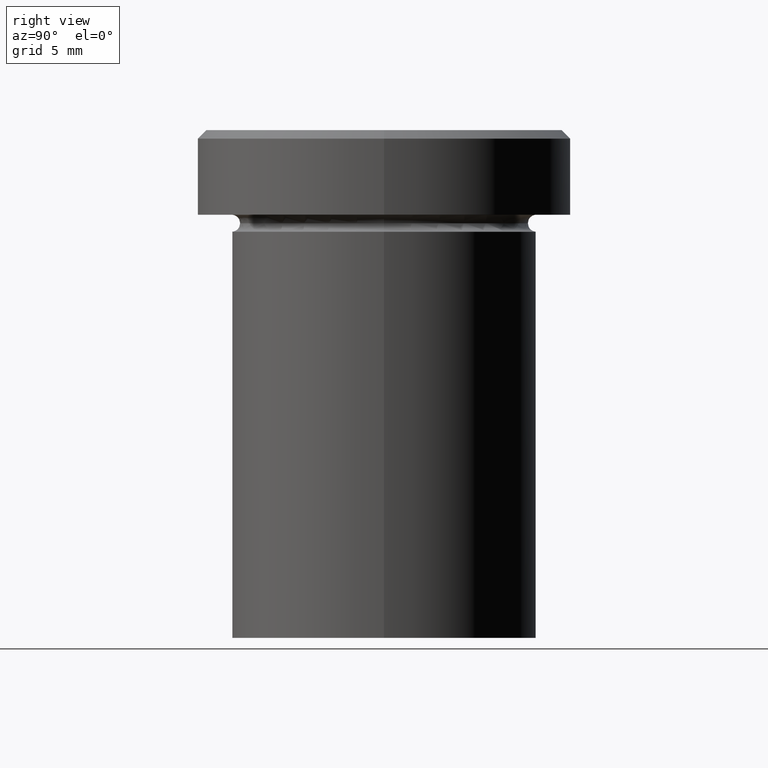
[diagram: clean part render]
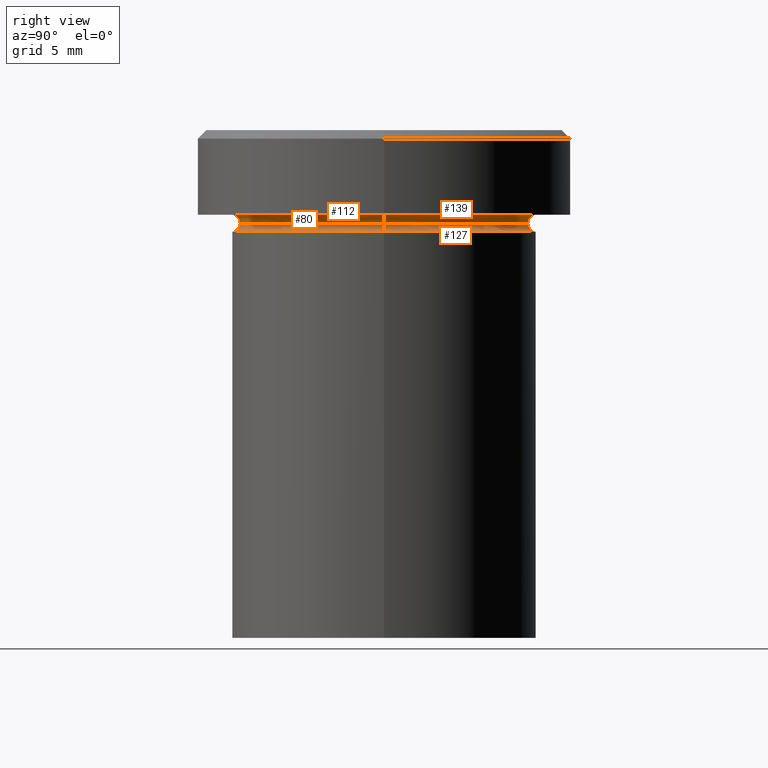
[diagram: same view with one multi-face feature highlighted, each face labeled with its STEP entity id]
A machine part, right view. The highlighted faces form ONE feature: a constant-radius fillet chain: 4 tangent blend faces with common blend radius 0.5 mm. The faces share edges in the B-rep.
Their STEP definitions:
[1] entity #127 (Torus):
#4 = FACE_OUTER_BOUND ( 'NONE', #209, .T. ) ;
#6 = DIRECTION ( 'NONE',  ( 1.000000000000000000, 0.000000000000000000, 0.000000000000000000 ) ) ;
#25 = CARTESIAN_POINT ( 'NONE',  ( 9.000000000000000000, 0.000000000000000000, -6.000000000000000000 ) ) ;
#32 = CARTESIAN_POINT ( 'NONE',  ( 0.000000000000000000, 0.000000000000000000, -6.000000000000000000 ) ) ;
#35 = AXIS2_PLACEMENT_3D ( 'NONE', #32, #348, #6 ) ;
#41 = CARTESIAN_POINT ( 'NONE',  ( 0.000000000000000000, 0.000000000000000000, -5.500000000000000000 ) ) ;
#48 = DIRECTION ( 'NONE',  ( -0.000000000000000000, -0.000000000000000000, 1.000000000000000000 ) ) ;
#53 = DIRECTION ( 'NONE',  ( 0.000000000000000000, 0.000000000000000000, -1.000000000000000000 ) ) ;
#65 = DIRECTION ( 'NONE',  ( -1.000000000000000000, 1.224646799147353454E-16, 0.000000000000000000 ) ) ;
#88 = ORIENTED_EDGE ( 'NONE', *, *, #322, .T. ) ;
#92 = ORIENTED_EDGE ( 'NONE', *, *, #276, .F. ) ;
#107 = EDGE_CURVE ( 'NONE', #250, #246, #406, .T. ) ;
#124 = CIRCLE ( 'NONE', #360, 0.5000000000000004441 ) ;
#127 = ADVANCED_FACE ( 'NONE', ( #4 ), #363, .F. ) ;
#152 = DIRECTION ( 'NONE',  ( 0.000000000000000000, -1.000000000000000000, 0.000000000000000000 ) ) ;
#156 = ORIENTED_EDGE ( 'NONE', *, *, #290, .F. ) ;
#173 = VERTEX_POINT ( 'NONE', #300 ) ;
#186 = CARTESIAN_POINT ( 'NONE',  ( -9.000000000000000000, 1.102182119232617714E-15, -6.000000000000000000 ) ) ;
#196 = DIRECTION ( 'NONE',  ( -0.000000000000000000, -0.000000000000000000, 1.000000000000000000 ) ) ;
#209 = EDGE_LOOP ( 'NONE', ( #156, #92, #404, #88 ) ) ;
#222 = CARTESIAN_POINT ( 'NONE',  ( 8.499999999999998224, 0.000000000000000000, -5.500000000000000000 ) ) ;
#246 = VERTEX_POINT ( 'NONE', #25 ) ;
#250 = VERTEX_POINT ( 'NONE', #222 ) ;
#255 = CARTESIAN_POINT ( 'NONE',  ( -9.000000000000000000, 1.102182119232617714E-15, -5.500000000000000000 ) ) ;
#256 = DIRECTION ( 'NONE',  ( 1.000000000000000000, 0.000000000000000000, 0.000000000000000000 ) ) ;
#276 = EDGE_CURVE ( 'NONE', #250, #173, #299, .T. ) ;
#289 = DIRECTION ( 'NONE',  ( 1.224646799147353207E-16, 1.000000000000000000, 0.000000000000000000 ) ) ;
#290 = EDGE_CURVE ( 'NONE', #173, #352, #124, .T. ) ;
#299 = CIRCLE ( 'NONE', #324, 8.499999999999998224 ) ;
#300 = CARTESIAN_POINT ( 'NONE',  ( -8.499999999999998224, 1.071565949253933927E-15, -5.500000000000000000 ) ) ;
#303 = CARTESIAN_POINT ( 'NONE',  ( 0.000000000000000000, 0.000000000000000000, -5.500000000000000000 ) ) ;
#306 = AXIS2_PLACEMENT_3D ( 'NONE', #41, #196, #326 ) ;
#322 = EDGE_CURVE ( 'NONE', #246, #352, #392, .T. ) ;
#324 = AXIS2_PLACEMENT_3D ( 'NONE', #303, #48, #256 ) ;
#326 = DIRECTION ( 'NONE',  ( 1.000000000000000000, 0.000000000000000000, 0.000000000000000000 ) ) ;
#333 = AXIS2_PLACEMENT_3D ( 'NONE', #342, #152, #53 ) ;
#342 = CARTESIAN_POINT ( 'NONE',  ( 9.000000000000000000, 0.000000000000000000, -5.500000000000000000 ) ) ;
#348 = DIRECTION ( 'NONE',  ( -0.000000000000000000, -0.000000000000000000, 1.000000000000000000 ) ) ;
#352 = VERTEX_POINT ( 'NONE', #186 ) ;
#360 = AXIS2_PLACEMENT_3D ( 'NONE', #255, #289, #65 ) ;
#363 = TOROIDAL_SURFACE ( 'NONE', #306, 9.000000000000000000, 0.5000000000000000000 ) ;
#392 = CIRCLE ( 'NONE', #35, 9.000000000000000000 ) ;
#404 = ORIENTED_EDGE ( 'NONE', *, *, #107, .T. ) ;
#406 = CIRCLE ( 'NONE', #333, 0.5000000000000004441 ) ;
[2] entity #139 (Torus):
#11 = DIRECTION ( 'NONE',  ( -1.000000000000000000, 0.000000000000000000, 0.000000000000000000 ) ) ;
#12 = DIRECTION ( 'NONE',  ( -1.000000000000000000, 0.000000000000000000, 0.000000000000000000 ) ) ;
#13 = EDGE_CURVE ( 'NONE', #173, #380, #142, .T. ) ;
#14 = DIRECTION ( 'NONE',  ( 0.000000000000000000, 0.000000000000000000, -1.000000000000000000 ) ) ;
#26 = AXIS2_PLACEMENT_3D ( 'NONE', #395, #104, #11 ) ;
#48 = DIRECTION ( 'NONE',  ( -0.000000000000000000, -0.000000000000000000, 1.000000000000000000 ) ) ;
#51 = TOROIDAL_SURFACE ( 'NONE', #204, 9.000000000000000000, 0.5000000000000000000 ) ;
#59 = AXIS2_PLACEMENT_3D ( 'NONE', #396, #168, #108 ) ;
#75 = CARTESIAN_POINT ( 'NONE',  ( 0.000000000000000000, 0.000000000000000000, -5.500000000000000000 ) ) ;
#104 = DIRECTION ( 'NONE',  ( -0.000000000000000000, -0.000000000000000000, 1.000000000000000000 ) ) ;
#108 = DIRECTION ( 'NONE',  ( -1.000000000000000000, -1.224646799147353454E-16, 0.000000000000000000 ) ) ;
#122 = DIRECTION ( 'NONE',  ( -0.000000000000000000, -1.000000000000000000, -0.000000000000000000 ) ) ;
#139 = ADVANCED_FACE ( 'NONE', ( #166 ), #51, .F. ) ;
#142 = CIRCLE ( 'NONE', #339, 0.5000000000000004441 ) ;
#166 = FACE_OUTER_BOUND ( 'NONE', #312, .T. ) ;
#167 = CIRCLE ( 'NONE', #26, 9.000000000000000000 ) ;
#168 = DIRECTION ( 'NONE',  ( -1.224646799147353207E-16, 1.000000000000000000, 0.000000000000000000 ) ) ;
#173 = VERTEX_POINT ( 'NONE', #300 ) ;
#183 = EDGE_CURVE ( 'NONE', #401, #380, #167, .T. ) ;
#193 = EDGE_CURVE ( 'NONE', #250, #401, #239, .T. ) ;
#204 = AXIS2_PLACEMENT_3D ( 'NONE', #75, #14, #12 ) ;
#222 = CARTESIAN_POINT ( 'NONE',  ( 8.499999999999998224, 0.000000000000000000, -5.500000000000000000 ) ) ;
#223 = DIRECTION ( 'NONE',  ( 0.000000000000000000, 0.000000000000000000, -1.000000000000000000 ) ) ;
#226 = ORIENTED_EDGE ( 'NONE', *, *, #276, .T. ) ;
#231 = ORIENTED_EDGE ( 'NONE', *, *, #183, .F. ) ;
#239 = CIRCLE ( 'NONE', #59, 0.5000000000000004441 ) ;
#250 = VERTEX_POINT ( 'NONE', #222 ) ;
#256 = DIRECTION ( 'NONE',  ( 1.000000000000000000, 0.000000000000000000, 0.000000000000000000 ) ) ;
#276 = EDGE_CURVE ( 'NONE', #250, #173, #299, .T. ) ;
#299 = CIRCLE ( 'NONE', #324, 8.499999999999998224 ) ;
#300 = CARTESIAN_POINT ( 'NONE',  ( -8.499999999999998224, 1.071565949253933927E-15, -5.500000000000000000 ) ) ;
#303 = CARTESIAN_POINT ( 'NONE',  ( 0.000000000000000000, 0.000000000000000000, -5.500000000000000000 ) ) ;
#312 = EDGE_LOOP ( 'NONE', ( #317, #226, #336, #231 ) ) ;
#317 = ORIENTED_EDGE ( 'NONE', *, *, #193, .F. ) ;
#324 = AXIS2_PLACEMENT_3D ( 'NONE', #303, #48, #256 ) ;
#325 = CARTESIAN_POINT ( 'NONE',  ( 9.000000000000000000, 1.102182119232617714E-15, -4.999999999999999112 ) ) ;
#336 = ORIENTED_EDGE ( 'NONE', *, *, #13, .T. ) ;
#339 = AXIS2_PLACEMENT_3D ( 'NONE', #375, #122, #223 ) ;
#358 = CARTESIAN_POINT ( 'NONE',  ( -9.000000000000000000, 0.000000000000000000, -4.999999999999999112 ) ) ;
#375 = CARTESIAN_POINT ( 'NONE',  ( -9.000000000000000000, 0.000000000000000000, -5.500000000000000000 ) ) ;
#380 = VERTEX_POINT ( 'NONE', #358 ) ;
#395 = CARTESIAN_POINT ( 'NONE',  ( 0.000000000000000000, 0.000000000000000000, -5.000000000000000000 ) ) ;
#396 = CARTESIAN_POINT ( 'NONE',  ( 9.000000000000000000, 1.102182119232617714E-15, -5.500000000000000000 ) ) ;
#401 = VERTEX_POINT ( 'NONE', #325 ) ;
[3] entity #80 (Torus):
#13 = EDGE_CURVE ( 'NONE', #173, #380, #142, .T. ) ;
#16 = CARTESIAN_POINT ( 'NONE',  ( 0.000000000000000000, 0.000000000000000000, -5.500000000000000000 ) ) ;
#42 = CIRCLE ( 'NONE', #270, 9.000000000000000000 ) ;
#46 = ORIENTED_EDGE ( 'NONE', *, *, #93, .F. ) ;
#59 = AXIS2_PLACEMENT_3D ( 'NONE', #396, #168, #108 ) ;
#73 = CARTESIAN_POINT ( 'NONE',  ( 0.000000000000000000, 0.000000000000000000, -5.000000000000000000 ) ) ;
#80 = ADVANCED_FACE ( 'NONE', ( #96 ), #90, .F. ) ;
#85 = ORIENTED_EDGE ( 'NONE', *, *, #178, .T. ) ;
#90 = TOROIDAL_SURFACE ( 'NONE', #247, 9.000000000000000000, 0.5000000000000000000 ) ;
#93 = EDGE_CURVE ( 'NONE', #380, #401, #42, .T. ) ;
#96 = FACE_OUTER_BOUND ( 'NONE', #268, .T. ) ;
#100 = CARTESIAN_POINT ( 'NONE',  ( 0.000000000000000000, 0.000000000000000000, -5.500000000000000000 ) ) ;
#108 = DIRECTION ( 'NONE',  ( -1.000000000000000000, -1.224646799147353454E-16, 0.000000000000000000 ) ) ;
#118 = DIRECTION ( 'NONE',  ( -1.000000000000000000, 0.000000000000000000, 0.000000000000000000 ) ) ;
#122 = DIRECTION ( 'NONE',  ( -0.000000000000000000, -1.000000000000000000, -0.000000000000000000 ) ) ;
#142 = CIRCLE ( 'NONE', #339, 0.5000000000000004441 ) ;
#168 = DIRECTION ( 'NONE',  ( -1.224646799147353207E-16, 1.000000000000000000, 0.000000000000000000 ) ) ;
#169 = DIRECTION ( 'NONE',  ( -0.000000000000000000, -0.000000000000000000, 1.000000000000000000 ) ) ;
#173 = VERTEX_POINT ( 'NONE', #300 ) ;
#178 = EDGE_CURVE ( 'NONE', #173, #250, #228, .T. ) ;
#190 = AXIS2_PLACEMENT_3D ( 'NONE', #16, #198, #199 ) ;
#193 = EDGE_CURVE ( 'NONE', #250, #401, #239, .T. ) ;
#198 = DIRECTION ( 'NONE',  ( -0.000000000000000000, -0.000000000000000000, 1.000000000000000000 ) ) ;
#199 = DIRECTION ( 'NONE',  ( 1.000000000000000000, 0.000000000000000000, 0.000000000000000000 ) ) ;
#222 = CARTESIAN_POINT ( 'NONE',  ( 8.499999999999998224, 0.000000000000000000, -5.500000000000000000 ) ) ;
#223 = DIRECTION ( 'NONE',  ( 0.000000000000000000, 0.000000000000000000, -1.000000000000000000 ) ) ;
#228 = CIRCLE ( 'NONE', #190, 8.499999999999998224 ) ;
#235 = DIRECTION ( 'NONE',  ( 0.000000000000000000, 0.000000000000000000, -1.000000000000000000 ) ) ;
#236 = DIRECTION ( 'NONE',  ( -1.000000000000000000, 0.000000000000000000, 0.000000000000000000 ) ) ;
#239 = CIRCLE ( 'NONE', #59, 0.5000000000000004441 ) ;
#247 = AXIS2_PLACEMENT_3D ( 'NONE', #100, #235, #236 ) ;
#250 = VERTEX_POINT ( 'NONE', #222 ) ;
#268 = EDGE_LOOP ( 'NONE', ( #85, #321, #46, #286 ) ) ;
#270 = AXIS2_PLACEMENT_3D ( 'NONE', #73, #169, #118 ) ;
#286 = ORIENTED_EDGE ( 'NONE', *, *, #13, .F. ) ;
#300 = CARTESIAN_POINT ( 'NONE',  ( -8.499999999999998224, 1.071565949253933927E-15, -5.500000000000000000 ) ) ;
#321 = ORIENTED_EDGE ( 'NONE', *, *, #193, .T. ) ;
#325 = CARTESIAN_POINT ( 'NONE',  ( 9.000000000000000000, 1.102182119232617714E-15, -4.999999999999999112 ) ) ;
#339 = AXIS2_PLACEMENT_3D ( 'NONE', #375, #122, #223 ) ;
#358 = CARTESIAN_POINT ( 'NONE',  ( -9.000000000000000000, 0.000000000000000000, -4.999999999999999112 ) ) ;
#375 = CARTESIAN_POINT ( 'NONE',  ( -9.000000000000000000, 0.000000000000000000, -5.500000000000000000 ) ) ;
#380 = VERTEX_POINT ( 'NONE', #358 ) ;
#396 = CARTESIAN_POINT ( 'NONE',  ( 9.000000000000000000, 1.102182119232617714E-15, -5.500000000000000000 ) ) ;
#401 = VERTEX_POINT ( 'NONE', #325 ) ;
[4] entity #112 (Torus):
#16 = CARTESIAN_POINT ( 'NONE',  ( 0.000000000000000000, 0.000000000000000000, -5.500000000000000000 ) ) ;
#24 = CARTESIAN_POINT ( 'NONE',  ( 0.000000000000000000, 0.000000000000000000, -5.500000000000000000 ) ) ;
#25 = CARTESIAN_POINT ( 'NONE',  ( 9.000000000000000000, 0.000000000000000000, -6.000000000000000000 ) ) ;
#33 = EDGE_LOOP ( 'NONE', ( #304, #362, #283, #153 ) ) ;
#34 = AXIS2_PLACEMENT_3D ( 'NONE', #68, #192, #87 ) ;
#53 = DIRECTION ( 'NONE',  ( 0.000000000000000000, 0.000000000000000000, -1.000000000000000000 ) ) ;
#65 = DIRECTION ( 'NONE',  ( -1.000000000000000000, 1.224646799147353454E-16, 0.000000000000000000 ) ) ;
#68 = CARTESIAN_POINT ( 'NONE',  ( 0.000000000000000000, 0.000000000000000000, -6.000000000000000000 ) ) ;
#87 = DIRECTION ( 'NONE',  ( 1.000000000000000000, 0.000000000000000000, 0.000000000000000000 ) ) ;
#107 = EDGE_CURVE ( 'NONE', #250, #246, #406, .T. ) ;
#112 = ADVANCED_FACE ( 'NONE', ( #176 ), #150, .F. ) ;
#115 = CIRCLE ( 'NONE', #34, 9.000000000000000000 ) ;
#124 = CIRCLE ( 'NONE', #360, 0.5000000000000004441 ) ;
#148 = DIRECTION ( 'NONE',  ( -0.000000000000000000, -0.000000000000000000, 1.000000000000000000 ) ) ;
#150 = TOROIDAL_SURFACE ( 'NONE', #214, 9.000000000000000000, 0.5000000000000000000 ) ;
#152 = DIRECTION ( 'NONE',  ( 0.000000000000000000, -1.000000000000000000, 0.000000000000000000 ) ) ;
#153 = ORIENTED_EDGE ( 'NONE', *, *, #107, .F. ) ;
#173 = VERTEX_POINT ( 'NONE', #300 ) ;
#176 = FACE_OUTER_BOUND ( 'NONE', #33, .T. ) ;
#178 = EDGE_CURVE ( 'NONE', #173, #250, #228, .T. ) ;
#186 = CARTESIAN_POINT ( 'NONE',  ( -9.000000000000000000, 1.102182119232617714E-15, -6.000000000000000000 ) ) ;
#190 = AXIS2_PLACEMENT_3D ( 'NONE', #16, #198, #199 ) ;
#192 = DIRECTION ( 'NONE',  ( -0.000000000000000000, -0.000000000000000000, 1.000000000000000000 ) ) ;
#198 = DIRECTION ( 'NONE',  ( -0.000000000000000000, -0.000000000000000000, 1.000000000000000000 ) ) ;
#199 = DIRECTION ( 'NONE',  ( 1.000000000000000000, 0.000000000000000000, 0.000000000000000000 ) ) ;
#214 = AXIS2_PLACEMENT_3D ( 'NONE', #24, #148, #378 ) ;
#222 = CARTESIAN_POINT ( 'NONE',  ( 8.499999999999998224, 0.000000000000000000, -5.500000000000000000 ) ) ;
#228 = CIRCLE ( 'NONE', #190, 8.499999999999998224 ) ;
#246 = VERTEX_POINT ( 'NONE', #25 ) ;
#250 = VERTEX_POINT ( 'NONE', #222 ) ;
#255 = CARTESIAN_POINT ( 'NONE',  ( -9.000000000000000000, 1.102182119232617714E-15, -5.500000000000000000 ) ) ;
#283 = ORIENTED_EDGE ( 'NONE', *, *, #389, .T. ) ;
#289 = DIRECTION ( 'NONE',  ( 1.224646799147353207E-16, 1.000000000000000000, 0.000000000000000000 ) ) ;
#290 = EDGE_CURVE ( 'NONE', #173, #352, #124, .T. ) ;
#300 = CARTESIAN_POINT ( 'NONE',  ( -8.499999999999998224, 1.071565949253933927E-15, -5.500000000000000000 ) ) ;
#304 = ORIENTED_EDGE ( 'NONE', *, *, #178, .F. ) ;
#333 = AXIS2_PLACEMENT_3D ( 'NONE', #342, #152, #53 ) ;
#342 = CARTESIAN_POINT ( 'NONE',  ( 9.000000000000000000, 0.000000000000000000, -5.500000000000000000 ) ) ;
#352 = VERTEX_POINT ( 'NONE', #186 ) ;
#360 = AXIS2_PLACEMENT_3D ( 'NONE', #255, #289, #65 ) ;
#362 = ORIENTED_EDGE ( 'NONE', *, *, #290, .T. ) ;
#378 = DIRECTION ( 'NONE',  ( 1.000000000000000000, 0.000000000000000000, 0.000000000000000000 ) ) ;
#389 = EDGE_CURVE ( 'NONE', #352, #246, #115, .T. ) ;
#406 = CIRCLE ( 'NONE', #333, 0.5000000000000004441 ) ;